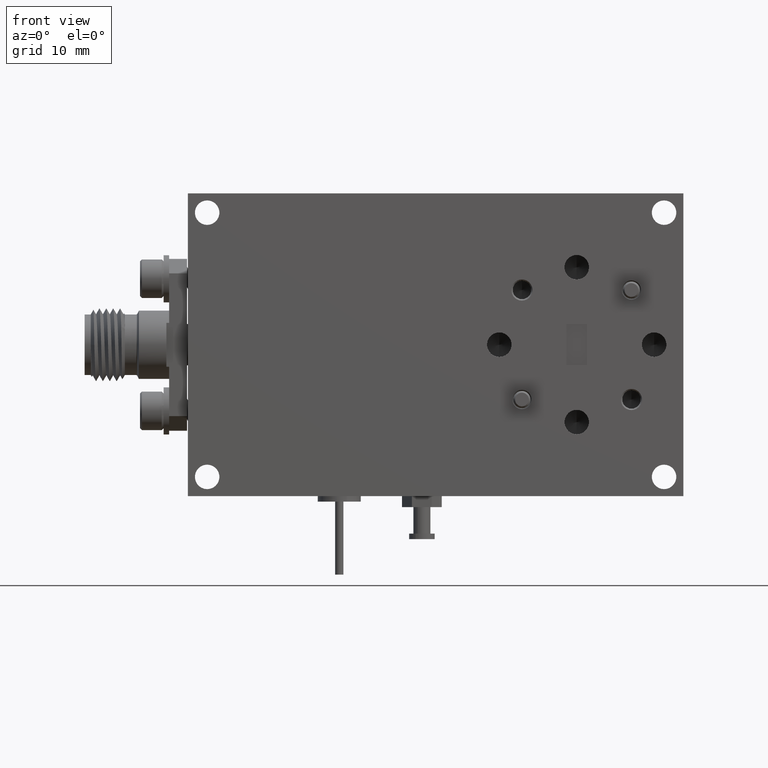
[diagram: clean part render]
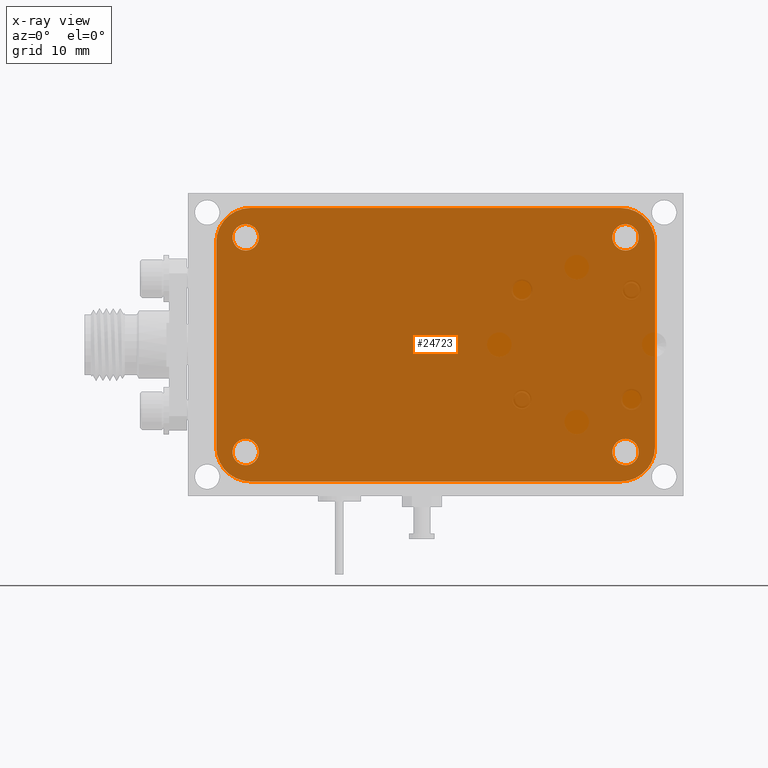
[diagram: x-ray — body ghosted, one internal face saturated and labeled with its STEP entity id]
A machine part, front view, then the same camera in x-ray: the body is ghosted and one INTERNAL B-rep face — a face not visible from any outside direction — is saturated and labeled: STEP entity #24723.
In plain terms, the highlighted planar face has unit normal (0, 1, 0).
Its self-contained STEP definition (entity closure, byte-faithful):
#104 = EDGE_CURVE ( 'NONE', #28108, #4311, #8468, .T. ) ;
#355 = AXIS2_PLACEMENT_3D ( 'NONE', #16990, #19275, #19476 ) ;
#396 = AXIS2_PLACEMENT_3D ( 'NONE', #15461, #1845, #17735 ) ;
#541 = CARTESIAN_POINT ( 'NONE',  ( 0.6719999999999979300, 0.4369999999999997200, -0.4970000000000003300 ) ) ;
#577 = CARTESIAN_POINT ( 'NONE',  ( 0.6899999999999980600, 0.4369999999999997200, 0.4379999999999996100 ) ) ;
#706 = DIRECTION ( 'NONE',  ( 0.0000000000000000000, 0.0000000000000000000, -1.000000000000000000 ) ) ;
#875 = VERTEX_POINT ( 'NONE', #541 ) ;
#891 = AXIS2_PLACEMENT_3D ( 'NONE', #27573, #12034, #9450 ) ;
#990 = EDGE_CURVE ( 'NONE', #3059, #3523, #7021, .T. ) ;
#1181 = CARTESIAN_POINT ( 'NONE',  ( 0.6899999999999978400, 0.4369999999999997200, -0.4380000000000004400 ) ) ;
#1542 = AXIS2_PLACEMENT_3D ( 'NONE', #16694, #25929, #706 ) ;
#1579 = AXIS2_PLACEMENT_3D ( 'NONE', #6436, #28632, #24139 ) ;
#1845 = DIRECTION ( 'NONE',  ( 0.0000000000000000000, 1.000000000000000000, 0.0000000000000000000 ) ) ;
#1849 = DIRECTION ( 'NONE',  ( 0.0000000000000000000, 1.000000000000000000, 0.0000000000000000000 ) ) ;
#1932 = EDGE_CURVE ( 'NONE', #26316, #7938, #14825, .T. ) ;
#2026 = CIRCLE ( 'NONE', #7320, 0.04800000000000000800 ) ;
#2231 = VERTEX_POINT ( 'NONE', #5066 ) ;
#2411 = CARTESIAN_POINT ( 'NONE',  ( -0.7970000000000019300, 0.4369999999999997200, 0.4970000000000002700 ) ) ;
#2552 = EDGE_CURVE ( 'NONE', #24738, #2231, #7317, .T. ) ;
#3011 = FACE_BOUND ( 'NONE', #28954, .T. ) ;
#3059 = VERTEX_POINT ( 'NONE', #5770 ) ;
#3523 = VERTEX_POINT ( 'NONE', #17992 ) ;
#4311 = VERTEX_POINT ( 'NONE', #577 ) ;
#4522 = ORIENTED_EDGE ( 'NONE', *, *, #18458, .T. ) ;
#4747 = ORIENTED_EDGE ( 'NONE', *, *, #990, .F. ) ;
#5029 = DIRECTION ( 'NONE',  ( -1.000000000000000000, 0.0000000000000000000, 3.632473494330853300E-016 ) ) ;
#5066 = CARTESIAN_POINT ( 'NONE',  ( -0.6720000000000021500, 0.4369999999999997200, -0.4969999999999997800 ) ) ;
#5176 = FACE_BOUND ( 'NONE', #19088, .T. ) ;
#5632 = DIRECTION ( 'NONE',  ( 0.0000000000000000000, 0.0000000000000000000, -1.000000000000000000 ) ) ;
#5702 = DIRECTION ( 'NONE',  ( -2.775557561562891400E-016, 0.0000000000000000000, -1.000000000000000000 ) ) ;
#5770 = CARTESIAN_POINT ( 'NONE',  ( 0.7969999999999980400, 0.4369999999999997200, 0.3719999999999997200 ) ) ;
#5943 = EDGE_CURVE ( 'NONE', #21683, #22698, #14284, .T. ) ;
#6204 = AXIS2_PLACEMENT_3D ( 'NONE', #26575, #12652, #14846 ) ;
#6232 = ORIENTED_EDGE ( 'NONE', *, *, #19520, .T. ) ;
#6436 = CARTESIAN_POINT ( 'NONE',  ( 0.6719999999999980400, 0.4369999999999997200, 0.3719999999999997200 ) ) ;
#6490 = VECTOR ( 'NONE', #25810, 39.37007874015748100 ) ;
#6698 = ORIENTED_EDGE ( 'NONE', *, *, #28469, .T. ) ;
#7021 = LINE ( 'NONE', #7903, #19812 ) ;
#7265 = CIRCLE ( 'NONE', #396, 0.04800000000000000800 ) ;
#7317 = CIRCLE ( 'NONE', #6204, 0.1249999999999999600 ) ;
#7320 = AXIS2_PLACEMENT_3D ( 'NONE', #28515, #21296, #5632 ) ;
#7471 = EDGE_LOOP ( 'NONE', ( #4747, #23527, #19094, #6232, #15466, #13596, #15786, #10636 ) ) ;
#7903 = CARTESIAN_POINT ( 'NONE',  ( 0.7969999999999978200, 0.4369999999999997200, -0.4970000000000003300 ) ) ;
#7938 = VERTEX_POINT ( 'NONE', #21538 ) ;
#8001 = PLANE ( 'NONE',  #8516 ) ;
#8468 = CIRCLE ( 'NONE', #28560, 0.04800000000000000800 ) ;
#8516 = AXIS2_PLACEMENT_3D ( 'NONE', #23639, #24187, #5702 ) ;
#8849 = VERTEX_POINT ( 'NONE', #15521 ) ;
#9283 = AXIS2_PLACEMENT_3D ( 'NONE', #17086, #14956, #26311 ) ;
#9450 = DIRECTION ( 'NONE',  ( 0.0000000000000000000, 0.0000000000000000000, -1.000000000000000000 ) ) ;
#9471 = CARTESIAN_POINT ( 'NONE',  ( -0.6900000000000016100, 0.4369999999999997200, 0.3420000000000001400 ) ) ;
#9506 = DIRECTION ( 'NONE',  ( 1.000000000000000000, 0.0000000000000000000, -4.060931460714834700E-016 ) ) ;
#10057 = AXIS2_PLACEMENT_3D ( 'NONE', #10916, #26759, #20340 ) ;
#10100 = DIRECTION ( 'NONE',  ( -2.775557561562891400E-016, 0.0000000000000000000, -1.000000000000000000 ) ) ;
#10407 = EDGE_CURVE ( 'NONE', #10480, #22746, #7265, .T. ) ;
#10480 = VERTEX_POINT ( 'NONE', #20836 ) ;
#10636 = ORIENTED_EDGE ( 'NONE', *, *, #24730, .T. ) ;
#10916 = CARTESIAN_POINT ( 'NONE',  ( 0.6719999999999979300, 0.4369999999999997200, -0.3720000000000003900 ) ) ;
#11007 = CIRCLE ( 'NONE', #1542, 0.04800000000000000800 ) ;
#11097 = CARTESIAN_POINT ( 'NONE',  ( -0.7970000000000021500, 0.4369999999999997200, -0.3719999999999998300 ) ) ;
#11193 = CARTESIAN_POINT ( 'NONE',  ( 0.6899999999999980600, 0.4369999999999997200, 0.3899999999999995700 ) ) ;
#11235 = CIRCLE ( 'NONE', #1579, 0.1250000000000000000 ) ;
#11281 = EDGE_CURVE ( 'NONE', #875, #2231, #22513, .T. ) ;
#11364 = DIRECTION ( 'NONE',  ( 0.0000000000000000000, 0.0000000000000000000, -1.000000000000000000 ) ) ;
#12034 = DIRECTION ( 'NONE',  ( 0.0000000000000000000, 1.000000000000000000, 0.0000000000000000000 ) ) ;
#12544 = LINE ( 'NONE', #14522, #6490 ) ;
#12652 = DIRECTION ( 'NONE',  ( -0.0000000000000000000, -1.000000000000000000, -0.0000000000000000000 ) ) ;
#13596 = ORIENTED_EDGE ( 'NONE', *, *, #2552, .T. ) ;
#14119 = EDGE_CURVE ( 'NONE', #4311, #28108, #16496, .T. ) ;
#14284 = CIRCLE ( 'NONE', #891, 0.04800000000000000800 ) ;
#14361 = CARTESIAN_POINT ( 'NONE',  ( -0.7970000000000021500, 0.4369999999999997200, -0.4969999999999997800 ) ) ;
#14522 = CARTESIAN_POINT ( 'NONE',  ( -0.7970000000000021500, 0.4369999999999997200, -0.4969999999999997800 ) ) ;
#14825 = LINE ( 'NONE', #2411, #17615 ) ;
#14846 = DIRECTION ( 'NONE',  ( 1.092739197465705700E-015, 0.0000000000000000000, -1.000000000000000000 ) ) ;
#14885 = CARTESIAN_POINT ( 'NONE',  ( 0.6899999999999980600, 0.4369999999999997200, 0.3419999999999995800 ) ) ;
#14956 = DIRECTION ( 'NONE',  ( 0.0000000000000000000, 1.000000000000000000, 0.0000000000000000000 ) ) ;
#15156 = DIRECTION ( 'NONE',  ( -0.0000000000000000000, -1.000000000000000000, -0.0000000000000000000 ) ) ;
#15461 = CARTESIAN_POINT ( 'NONE',  ( 0.6899999999999978400, 0.4369999999999997200, -0.3900000000000004000 ) ) ;
#15466 = ORIENTED_EDGE ( 'NONE', *, *, #16200, .F. ) ;
#15521 = CARTESIAN_POINT ( 'NONE',  ( -0.6900000000000019500, 0.4369999999999997200, -0.4379999999999998900 ) ) ;
#15786 = ORIENTED_EDGE ( 'NONE', *, *, #11281, .F. ) ;
#15933 = VERTEX_POINT ( 'NONE', #24277 ) ;
#16129 = CIRCLE ( 'NONE', #10057, 0.1249999999999999600 ) ;
#16200 = EDGE_CURVE ( 'NONE', #24738, #15933, #12544, .T. ) ;
#16496 = CIRCLE ( 'NONE', #9283, 0.04800000000000000800 ) ;
#16518 = ORIENTED_EDGE ( 'NONE', *, *, #17289, .T. ) ;
#16694 = CARTESIAN_POINT ( 'NONE',  ( -0.6900000000000019500, 0.4369999999999997200, -0.3899999999999998500 ) ) ;
#16990 = CARTESIAN_POINT ( 'NONE',  ( 0.6899999999999978400, 0.4369999999999997200, -0.3900000000000004000 ) ) ;
#17086 = CARTESIAN_POINT ( 'NONE',  ( 0.6899999999999980600, 0.4369999999999997200, 0.3899999999999995700 ) ) ;
#17289 = EDGE_CURVE ( 'NONE', #18659, #8849, #28169, .T. ) ;
#17545 = FACE_OUTER_BOUND ( 'NONE', #7471, .T. ) ;
#17615 = VECTOR ( 'NONE', #9506, 39.37007874015748100 ) ;
#17735 = DIRECTION ( 'NONE',  ( 0.0000000000000000000, 0.0000000000000000000, -1.000000000000000000 ) ) ;
#17738 = CIRCLE ( 'NONE', #355, 0.04800000000000000800 ) ;
#17896 = DIRECTION ( 'NONE',  ( 0.0000000000000000000, 1.000000000000000000, 0.0000000000000000000 ) ) ;
#17992 = CARTESIAN_POINT ( 'NONE',  ( 0.7969999999999978200, 0.4369999999999997200, -0.3720000000000003900 ) ) ;
#18049 = CIRCLE ( 'NONE', #29199, 0.1250000000000000000 ) ;
#18458 = EDGE_CURVE ( 'NONE', #22746, #10480, #17738, .T. ) ;
#18659 = VERTEX_POINT ( 'NONE', #25611 ) ;
#19088 = EDGE_LOOP ( 'NONE', ( #28672, #25806 ) ) ;
#19094 = ORIENTED_EDGE ( 'NONE', *, *, #1932, .F. ) ;
#19275 = DIRECTION ( 'NONE',  ( 0.0000000000000000000, 1.000000000000000000, 0.0000000000000000000 ) ) ;
#19390 = AXIS2_PLACEMENT_3D ( 'NONE', #25027, #17896, #11364 ) ;
#19476 = DIRECTION ( 'NONE',  ( 0.0000000000000000000, 0.0000000000000000000, -1.000000000000000000 ) ) ;
#19520 = EDGE_CURVE ( 'NONE', #26316, #15933, #18049, .T. ) ;
#19812 = VECTOR ( 'NONE', #10100, 39.37007874015748100 ) ;
#20340 = DIRECTION ( 'NONE',  ( 0.0000000000000000000, 0.0000000000000000000, -1.000000000000000000 ) ) ;
#20634 = EDGE_LOOP ( 'NONE', ( #20944, #29471 ) ) ;
#20836 = CARTESIAN_POINT ( 'NONE',  ( 0.6899999999999978400, 0.4369999999999997200, -0.3420000000000004100 ) ) ;
#20944 = ORIENTED_EDGE ( 'NONE', *, *, #5943, .T. ) ;
#21296 = DIRECTION ( 'NONE',  ( 0.0000000000000000000, 1.000000000000000000, 0.0000000000000000000 ) ) ;
#21319 = EDGE_CURVE ( 'NONE', #22698, #21683, #2026, .T. ) ;
#21356 = EDGE_LOOP ( 'NONE', ( #4522, #27418 ) ) ;
#21538 = CARTESIAN_POINT ( 'NONE',  ( 0.6719999999999981500, 0.4369999999999997200, 0.4969999999999996600 ) ) ;
#21539 = CARTESIAN_POINT ( 'NONE',  ( -0.6720000000000019300, 0.4369999999999997200, 0.4970000000000002700 ) ) ;
#21683 = VERTEX_POINT ( 'NONE', #9471 ) ;
#21797 = VECTOR ( 'NONE', #5029, 39.37007874015748100 ) ;
#22006 = DIRECTION ( 'NONE',  ( 0.0000000000000000000, 0.0000000000000000000, -1.000000000000000000 ) ) ;
#22202 = FACE_BOUND ( 'NONE', #21356, .T. ) ;
#22380 = EDGE_CURVE ( 'NONE', #3059, #7938, #11235, .T. ) ;
#22513 = LINE ( 'NONE', #14361, #21797 ) ;
#22698 = VERTEX_POINT ( 'NONE', #23232 ) ;
#22746 = VERTEX_POINT ( 'NONE', #1181 ) ;
#22756 = DIRECTION ( 'NONE',  ( 0.0000000000000000000, 0.0000000000000000000, -1.000000000000000000 ) ) ;
#23232 = CARTESIAN_POINT ( 'NONE',  ( -0.6900000000000016100, 0.4369999999999997200, 0.4380000000000001700 ) ) ;
#23527 = ORIENTED_EDGE ( 'NONE', *, *, #22380, .T. ) ;
#23639 = CARTESIAN_POINT ( 'NONE',  ( -2.185478394931410600E-015, 0.4369999999999997200, -1.365923996832131600E-016 ) ) ;
#24139 = DIRECTION ( 'NONE',  ( -1.092739197465705300E-015, 0.0000000000000000000, -1.000000000000000000 ) ) ;
#24187 = DIRECTION ( 'NONE',  ( 0.0000000000000000000, 1.000000000000000000, 0.0000000000000000000 ) ) ;
#24277 = CARTESIAN_POINT ( 'NONE',  ( -0.7970000000000019300, 0.4369999999999997200, 0.3719999999999998900 ) ) ;
#24723 = ADVANCED_FACE ( 'NONE', ( #5176, #3011, #25088, #22202, #17545 ), #8001, .F. ) ;
#24730 = EDGE_CURVE ( 'NONE', #875, #3523, #16129, .T. ) ;
#24738 = VERTEX_POINT ( 'NONE', #11097 ) ;
#25027 = CARTESIAN_POINT ( 'NONE',  ( -0.6900000000000019500, 0.4369999999999997200, -0.3899999999999998500 ) ) ;
#25088 = FACE_BOUND ( 'NONE', #20634, .T. ) ;
#25611 = CARTESIAN_POINT ( 'NONE',  ( -0.6900000000000019500, 0.4369999999999997200, -0.3419999999999998600 ) ) ;
#25806 = ORIENTED_EDGE ( 'NONE', *, *, #14119, .T. ) ;
#25810 = DIRECTION ( 'NONE',  ( 2.775557561562891400E-016, 0.0000000000000000000, 1.000000000000000000 ) ) ;
#25929 = DIRECTION ( 'NONE',  ( 0.0000000000000000000, 1.000000000000000000, 0.0000000000000000000 ) ) ;
#26311 = DIRECTION ( 'NONE',  ( 0.0000000000000000000, 0.0000000000000000000, -1.000000000000000000 ) ) ;
#26316 = VERTEX_POINT ( 'NONE', #21539 ) ;
#26422 = CARTESIAN_POINT ( 'NONE',  ( -0.6720000000000019300, 0.4369999999999997200, 0.3720000000000002200 ) ) ;
#26575 = CARTESIAN_POINT ( 'NONE',  ( -0.6720000000000021500, 0.4369999999999997200, -0.3719999999999998300 ) ) ;
#26759 = DIRECTION ( 'NONE',  ( -0.0000000000000000000, -1.000000000000000000, -0.0000000000000000000 ) ) ;
#27418 = ORIENTED_EDGE ( 'NONE', *, *, #10407, .T. ) ;
#27573 = CARTESIAN_POINT ( 'NONE',  ( -0.6900000000000016100, 0.4369999999999997200, 0.3900000000000001200 ) ) ;
#28108 = VERTEX_POINT ( 'NONE', #14885 ) ;
#28169 = CIRCLE ( 'NONE', #19390, 0.04800000000000000800 ) ;
#28469 = EDGE_CURVE ( 'NONE', #8849, #18659, #11007, .T. ) ;
#28515 = CARTESIAN_POINT ( 'NONE',  ( -0.6900000000000016100, 0.4369999999999997200, 0.3900000000000001200 ) ) ;
#28560 = AXIS2_PLACEMENT_3D ( 'NONE', #11193, #1849, #22756 ) ;
#28632 = DIRECTION ( 'NONE',  ( -0.0000000000000000000, -1.000000000000000000, -0.0000000000000000000 ) ) ;
#28672 = ORIENTED_EDGE ( 'NONE', *, *, #104, .T. ) ;
#28954 = EDGE_LOOP ( 'NONE', ( #6698, #16518 ) ) ;
#29199 = AXIS2_PLACEMENT_3D ( 'NONE', #26422, #15156, #22006 ) ;
#29471 = ORIENTED_EDGE ( 'NONE', *, *, #21319, .T. ) ;